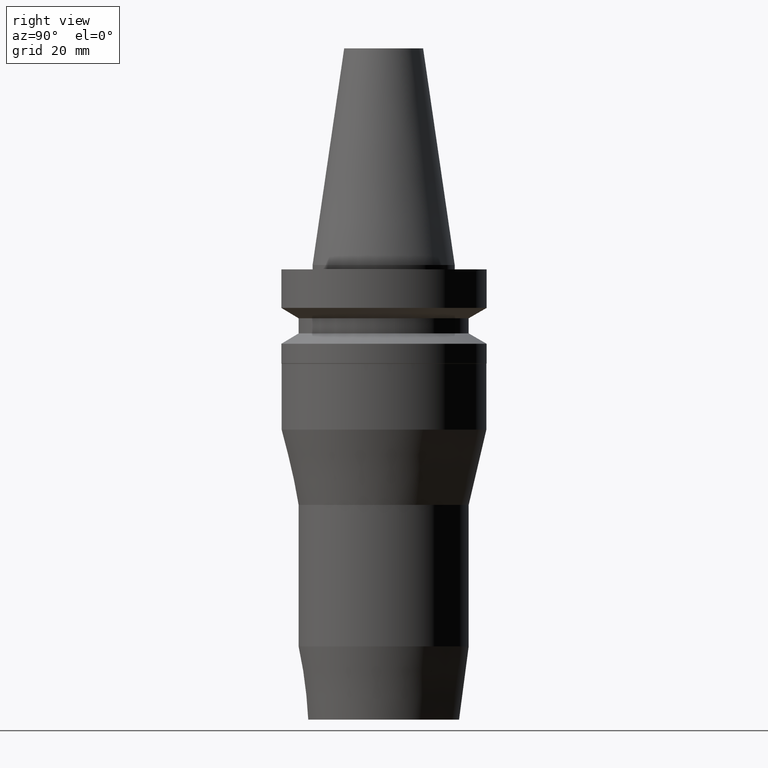
[diagram: clean part render]
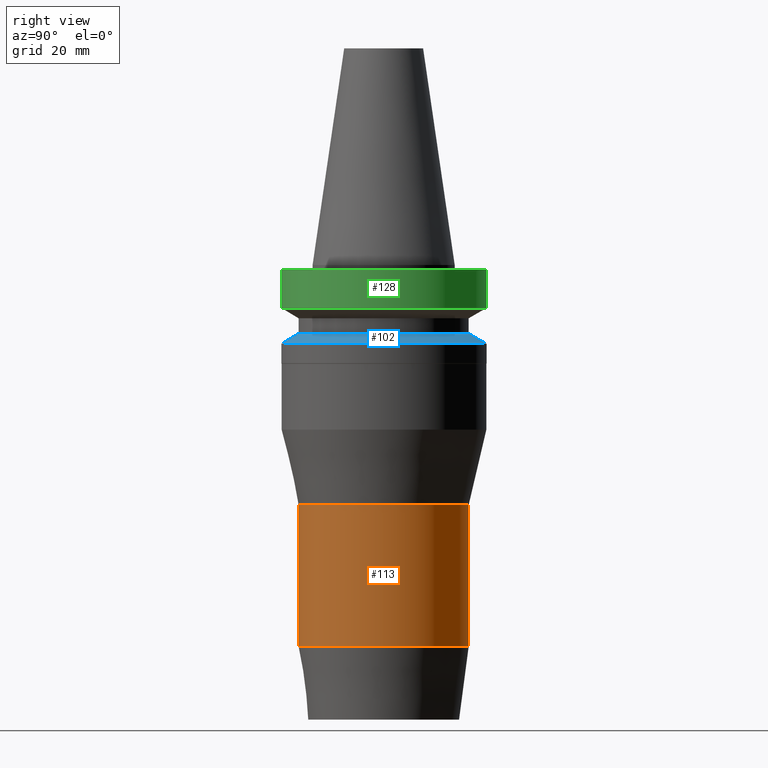
[diagram: same view with three faces highlighted in distinct colors, each labeled with its STEP entity id]
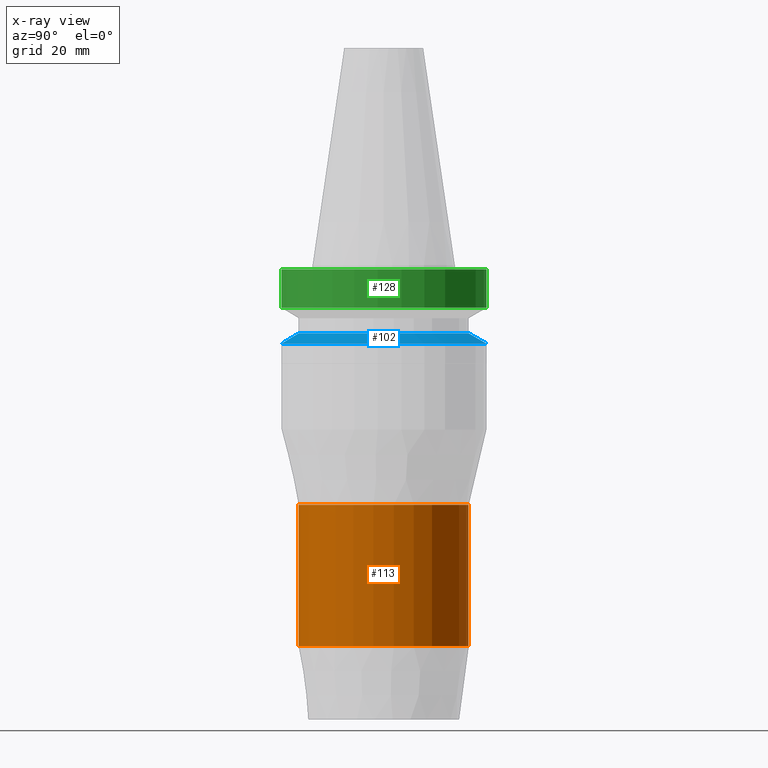
[diagram: x-ray of the same camera — body ghosted, the three highlighted faces saturated]
A machine part, right view with three faces highlighted in distinct colors.
The next image is the same camera in x-ray (body ghosted, the three faces saturated) — at least one of them is partly hidden behind the body in this view.
Their STEP definitions:

[orange] entity #113 — the highlighted cylindrical surface (bore or boss wall) has radius 19 mm, axis along (0, 0, -1).
#54=EDGE_CURVE('Unnamed[1]',#146,#146,#147,.T.);
#93=EDGE_CURVE('Unnamed[1]',#207,#207,#208,.T.);
#113=ADVANCED_FACE('Unnamed[1]',(#236,#237),#238,.T.);
#146=VERTEX_POINT('',#271);
#147=CIRCLE('',#272,18.9999999999981);
#207=VERTEX_POINT('',#348);
#208=CIRCLE('',#349,19.0000000000031);
#236=FACE_BOUND('',#383,.T.);
#237=FACE_BOUND('',#384,.T.);
#238=CYLINDRICAL_SURFACE('',#385,19.0000000000006);
#271=CARTESIAN_POINT('',(5.21914953239817E-015,18.9999999999981,-85.2351802337122));
#272=AXIS2_PLACEMENT_3D('',#417,#418,#419);
#348=CARTESIAN_POINT('',(3.28205342171516E-015,19.0000000000031,-53.6000000000042));
#349=AXIS2_PLACEMENT_3D('',#485,#486,#487);
#383=EDGE_LOOP('',(#516));
#384=EDGE_LOOP('',(#517));
#385=AXIS2_PLACEMENT_3D('',#518,#519,#520);
#417=CARTESIAN_POINT('',(5.21914953239817E-015,1.04382990647963E-014,-85.2351802337122));
#418=DIRECTION('',(6.12323399573677E-017,1.22464679914735E-016,-1.0));
#419=DIRECTION('',(-1.23259516440783E-032,1.0,1.22464679914735E-016));
#485=CARTESIAN_POINT('',(3.28205342171516E-015,6.56410684343032E-015,-53.6000000000042));
#486=DIRECTION('',(6.12323399573677E-017,1.22464679914735E-016,-1.0));
#487=DIRECTION('',(-1.23259516440783E-032,1.0,1.22464679914735E-016));
#516=ORIENTED_EDGE('',*,*,#54,.F.);
#517=ORIENTED_EDGE('',*,*,#93,.T.);
#518=CARTESIAN_POINT('',(4.25060147705666E-015,8.50120295411333E-015,-69.4175901168582));
#519=DIRECTION('',(6.12323399573676E-017,1.22464679914735E-016,-1.0));
#520=DIRECTION('',(-1.23259516440783E-032,1.0,1.22464679914735E-016));

[blue] entity #102 — the highlighted conical surface has half-angle 60 deg.
#58=EDGE_CURVE('Unnamed[1]',#152,#152,#153,.T.);
#102=ADVANCED_FACE('Unnamed[1]',(#220,#221),#222,.T.);
#117=EDGE_CURVE('Unnamed[1]',#243,#243,#244,.T.);
#152=VERTEX_POINT('',#279);
#153=CIRCLE('',#280,23.0);
#220=FACE_BOUND('',#364,.T.);
#221=FACE_BOUND('',#365,.T.);
#222=CONICAL_SURFACE('',#366,21.0,1.04719755058882);
#243=VERTEX_POINT('',#392);
#244=CIRCLE('',#393,19.0);
#279=CARTESIAN_POINT('',(1.07768918324967E-015,23.0,-17.6));
#280=AXIS2_PLACEMENT_3D('',#423,#424,#425);
#364=EDGE_LOOP('',(#500));
#365=EDGE_LOOP('',(#501));
#366=AXIS2_PLACEMENT_3D('',#502,#503,#504);
#392=CARTESIAN_POINT('',(9.36279151221199E-016,19.0,-15.29059892));
#393=AXIS2_PLACEMENT_3D('',#524,#525,#526);
#423=CARTESIAN_POINT('',(1.07768918324967E-015,2.15537836649934E-015,-17.6));
#424=DIRECTION('',(6.12323399573677E-017,1.22464679914735E-016,-1.0));
#425=DIRECTION('',(-1.23259516440783E-032,1.0,1.22464679914735E-016));
#500=ORIENTED_EDGE('',*,*,#58,.F.);
#501=ORIENTED_EDGE('',*,*,#117,.T.);
#502=CARTESIAN_POINT('',(1.00698416723543E-015,2.01396833447087E-015,-16.44529946));
#503=DIRECTION('',(6.12323399573677E-017,1.22464679914735E-016,-1.0));
#504=DIRECTION('',(-1.23259516440783E-032,1.0,1.22464679914735E-016));
#524=CARTESIAN_POINT('',(9.36279151221199E-016,1.8725583024424E-015,-15.29059892));
#525=DIRECTION('',(6.12323399573677E-017,1.22464679914735E-016,-1.0));
#526=DIRECTION('',(-1.23259516440783E-032,1.0,1.22464679914735E-016));

[green] entity #128 — the highlighted cylindrical surface (bore or boss wall) has radius 23 mm, axis along (0, 0, -1).
#115=EDGE_CURVE('Unnamed[1]',#240,#240,#241,.T.);
#122=EDGE_CURVE('Unnamed[1]',#251,#251,#252,.T.);
#128=ADVANCED_FACE('Unnamed[1]',(#260,#261),#262,.T.);
#240=VERTEX_POINT('',#388);
#241=CIRCLE('',#389,23.0);
#251=VERTEX_POINT('',#402);
#252=CIRCLE('',#403,23.0);
#260=FACE_BOUND('',#413,.T.);
#261=FACE_BOUND('',#414,.T.);
#262=CYLINDRICAL_SURFACE('',#415,23.0);
#388=CARTESIAN_POINT('',(5.87830463590729E-016,23.0,-9.59999999999999));
#389=AXIS2_PLACEMENT_3D('',#521,#522,#523);
#402=CARTESIAN_POINT('',(6.12323399573674E-017,23.0,-0.999999999999997));
#403=AXIS2_PLACEMENT_3D('',#533,#534,#535);
#413=EDGE_LOOP('',(#543));
#414=EDGE_LOOP('',(#544));
#415=AXIS2_PLACEMENT_3D('',#545,#546,#547);
#521=CARTESIAN_POINT('',(5.87830463590729E-016,1.17566092718146E-015,-9.59999999999999));
#522=DIRECTION('',(6.12323399573677E-017,1.22464679914735E-016,-1.0));
#523=DIRECTION('',(-1.23259516440783E-032,1.0,1.22464679914735E-016));
#533=CARTESIAN_POINT('',(6.12323399573677E-017,1.22464679914735E-016,-1.0));
#534=DIRECTION('',(6.12323399573677E-017,1.22464679914735E-016,-1.0));
#535=DIRECTION('',(-1.23259516440783E-032,1.0,1.22464679914735E-016));
#543=ORIENTED_EDGE('',*,*,#115,.F.);
#544=ORIENTED_EDGE('',*,*,#122,.T.);
#545=CARTESIAN_POINT('',(3.24531401774048E-016,6.49062803548097E-016,-5.3));
#546=DIRECTION('',(6.12323399573677E-017,1.22464679914735E-016,-1.0));
#547=DIRECTION('',(-1.23259516440783E-032,1.0,1.22464679914735E-016));